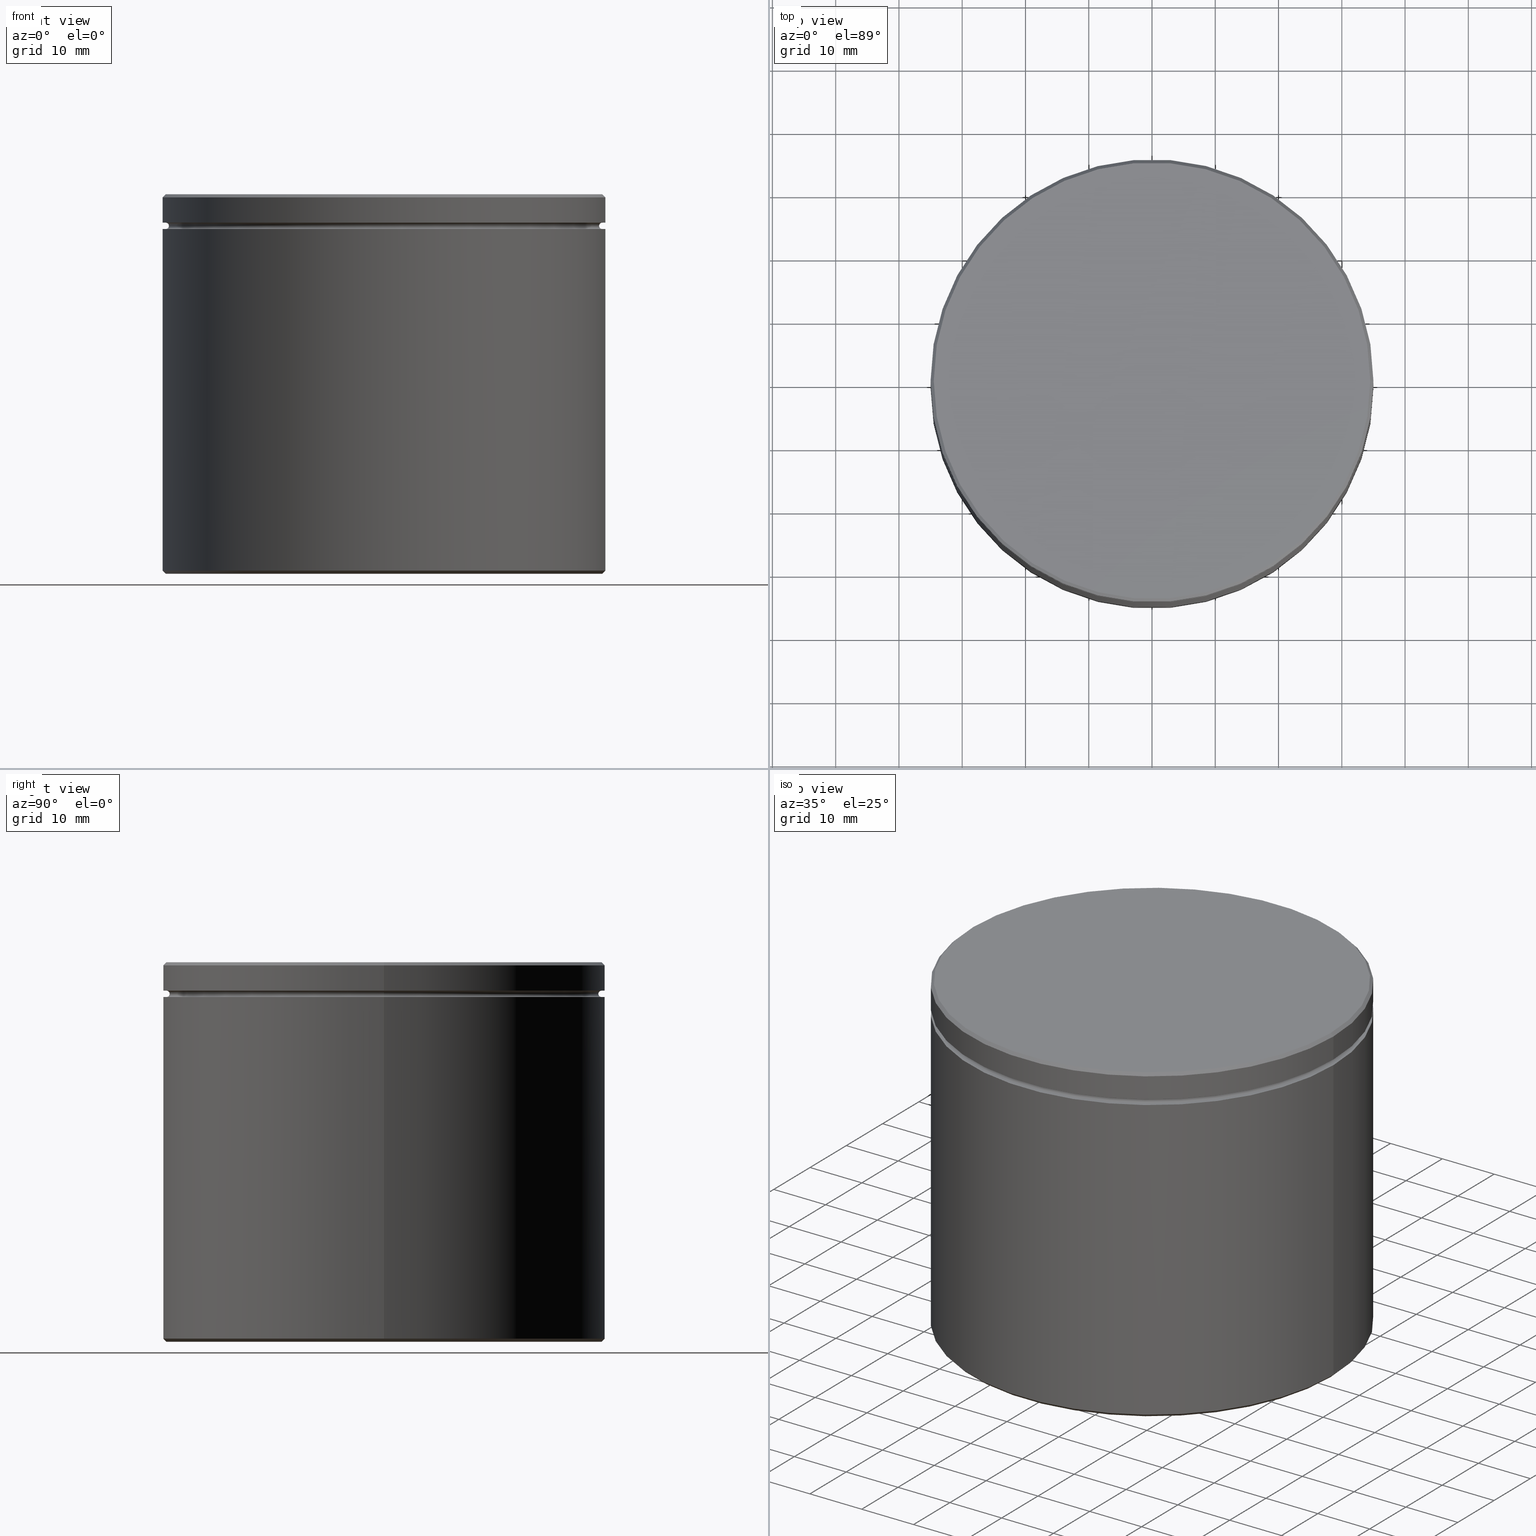
[diagram: canonical four-view strip — front | top / right | iso, engineering-drawing reading convention]
A machine part, canonical four-view strip (front | top / right | iso — engineering-drawing reading convention). The complete STEP part file that produces these views, byte-faithful:
ISO-10303-21;
HEADER;
FILE_DESCRIPTION (( 'STEP AP203' ),
    '1' );
FILE_NAME ('12b8.STEP',
    '2024-01-02T17:53:43',
    ( '' ),
    ( '' ),
    'SwSTEP 2.0',
    'SolidWorks 2019',
    '' );
FILE_SCHEMA (( 'CONFIG_CONTROL_DESIGN' ));
ENDSEC;

DATA;
#1 = DIRECTION ( 'NONE',  ( 1.000000000000000000, 0.000000000000000000, 0.000000000000000000 ) ) ;
#2 = CARTESIAN_POINT ( 'NONE',  ( 0.000000000000000000, 0.000000000000000000, -5.000000000000000888 ) ) ;
#3 = EDGE_LOOP ( 'NONE', ( #241, #21, #394, #489 ) ) ;
#4 = APPROVAL_PERSON_ORGANIZATION ( #126, #345, #395 ) ;
#5 = DATE_TIME_ROLE ( 'classification_date' ) ;
#6 = CARTESIAN_POINT ( 'NONE',  ( 0.000000000000000000, 0.000000000000000000, -0.4999999999999727995 ) ) ;
#7 = ORIENTED_EDGE ( 'NONE', *, *, #416, .T. ) ;
#8 = CARTESIAN_POINT ( 'NONE',  ( 0.000000000000000000, 0.000000000000000000, -17.99999999999999645 ) ) ;
#9 = ORIENTED_EDGE ( 'NONE', *, *, #416, .F. ) ;
#10 = AXIS2_PLACEMENT_3D ( 'NONE', #112, #503, #284 ) ;
#11 = CIRCLE ( 'NONE', #399, 34.00000000000000000 ) ;
#12 = PERSON_AND_ORGANIZATION_ROLE ( 'creator' ) ;
#13 = LINE ( 'NONE', #523, #294 ) ;
#14 = ORIENTED_EDGE ( 'NONE', *, *, #460, .F. ) ;
#15 = CARTESIAN_POINT ( 'NONE',  ( 34.50000000000001421, 4.225031457058370500E-15, 0.000000000000000000 ) ) ;
#16 = ORIENTED_EDGE ( 'NONE', *, *, #200, .T. ) ;
#17 = DESIGN_CONTEXT ( 'detailed design', #366, 'design' ) ;
#18 = EDGE_CURVE ( 'NONE', #527, #361, #280, .T. ) ;
#19 = CARTESIAN_POINT ( 'NONE',  ( 0.000000000000000000, 0.000000000000000000, 0.000000000000000000 ) ) ;
#20 = CARTESIAN_POINT ( 'NONE',  ( 0.000000000000000000, 0.000000000000000000, -4.999999999999999112 ) ) ;
#21 = ORIENTED_EDGE ( 'NONE', *, *, #263, .T. ) ;
#22 = ORIENTED_EDGE ( 'NONE', *, *, #521, .T. ) ;
#23 = DIRECTION ( 'NONE',  ( -0.000000000000000000, -0.000000000000000000, 1.000000000000000000 ) ) ;
#24 = ORIENTED_EDGE ( 'NONE', *, *, #381, .F. ) ;
#25 = EDGE_CURVE ( 'NONE', #332, #461, #425, .T. ) ;
#26 = EDGE_LOOP ( 'NONE', ( #543, #192, #106, #316 ) ) ;
#27 = VERTEX_POINT ( 'NONE', #367 ) ;
#28 = AXIS2_PLACEMENT_3D ( 'NONE', #562, #87, #421 ) ;
#29 = CARTESIAN_POINT ( 'NONE',  ( -34.50000000000001421, 0.000000000000000000, 0.000000000000000000 ) ) ;
#30 = FACE_OUTER_BOUND ( 'NONE', #376, .T. ) ;
#31 = DIRECTION ( 'NONE',  ( 0.000000000000000000, 0.000000000000000000, -1.000000000000000000 ) ) ;
#32 = EDGE_CURVE ( 'NONE', #188, #439, #74, .T. ) ;
#33 = DIRECTION ( 'NONE',  ( -0.000000000000000000, -0.000000000000000000, 1.000000000000000000 ) ) ;
#34 = DIRECTION ( 'NONE',  ( 1.000000000000000000, 0.000000000000000000, 0.000000000000000000 ) ) ;
#35 = CARTESIAN_POINT ( 'NONE',  ( 25.50000000000000000, 3.122849337825749828E-15, -17.99999999999999645 ) ) ;
#36 = CC_DESIGN_APPROVAL ( #557, ( #256 ) ) ;
#37 = APPLICATION_PROTOCOL_DEFINITION ( 'international standard', 'config_control_design', 1994, #374 ) ;
#38 = TOROIDAL_SURFACE ( 'NONE', #498, 34.50000000000000000, 0.5000000000000000000 ) ;
#39 = CIRCLE ( 'NONE', #352, 35.00000000000000000 ) ;
#40 = CYLINDRICAL_SURFACE ( 'NONE', #171, 35.00000000000000000 ) ;
#41 = VERTEX_POINT ( 'NONE', #322 ) ;
#42 = EDGE_CURVE ( 'NONE', #328, #118, #558, .T. ) ;
#43 = DIRECTION ( 'NONE',  ( 1.000000000000000000, 0.000000000000000000, 0.000000000000000000 ) ) ;
#44 = DATE_TIME_ROLE ( 'creation_date' ) ;
#45 = DIRECTION ( 'NONE',  ( -0.000000000000000000, -0.000000000000000000, 1.000000000000000000 ) ) ;
#46 = PERSON_AND_ORGANIZATION ( #161, #278 ) ;
#47 = DIRECTION ( 'NONE',  ( 1.224646799147353207E-16, 1.000000000000000000, 0.000000000000000000 ) ) ;
#48 = VECTOR ( 'NONE', #539, 1000.000000000000000 ) ;
#49 = AXIS2_PLACEMENT_3D ( 'NONE', #555, #375, #552 ) ;
#50 = ORIENTED_EDGE ( 'NONE', *, *, #324, .F. ) ;
#51 = CC_DESIGN_PERSON_AND_ORGANIZATION_ASSIGNMENT ( #309, #12, ( #304 ) ) ;
#52 = APPROVAL_DATE_TIME ( #92, #345 ) ;
#53 = CARTESIAN_POINT ( 'NONE',  ( 0.000000000000000000, 35.00000000000000000, -60.00000000000000000 ) ) ;
#54 = CYLINDRICAL_SURFACE ( 'NONE', #456, 35.00000000000000000 ) ;
#55 = VERTEX_POINT ( 'NONE', #546 ) ;
#56 = CARTESIAN_POINT ( 'NONE',  ( -35.00000000000000000, 4.286263797015736496E-15, -0.4999999999999727995 ) ) ;
#57 = DIRECTION ( 'NONE',  ( 1.000000000000000000, 0.000000000000000000, 0.000000000000000000 ) ) ;
#58 = EDGE_LOOP ( 'NONE', ( #496, #568, #268, #62 ) ) ;
#59 = DATE_AND_TIME ( #99, #237 ) ;
#60 = CIRCLE ( 'NONE', #370, 25.50000000000000000 ) ;
#61 = CARTESIAN_POINT ( 'NONE',  ( 0.000000000000000000, 0.000000000000000000, -17.99999999999999645 ) ) ;
#62 = ORIENTED_EDGE ( 'NONE', *, *, #85, .F. ) ;
#63 = CIRCLE ( 'NONE', #464, 34.50000000000000000 ) ;
#64 = ADVANCED_FACE ( 'NONE', ( #30 ), #351, .T. ) ;
#65 = DIRECTION ( 'NONE',  ( -0.7071067811865573427, 0.000000000000000000, -0.7071067811865378028 ) ) ;
#66 = ORIENTED_EDGE ( 'NONE', *, *, #42, .T. ) ;
#67 = DIRECTION ( 'NONE',  ( -1.000000000000000000, 0.000000000000000000, 0.000000000000000000 ) ) ;
#68 = ORIENTED_EDGE ( 'NONE', *, *, #484, .T. ) ;
#69 = VECTOR ( 'NONE', #65, 1000.000000000000000 ) ;
#70 = ADVANCED_FACE ( 'NONE', ( #72 ), #38, .F. ) ;
#71 = AXIS2_PLACEMENT_3D ( 'NONE', #383, #31, #337 ) ;
#72 = FACE_OUTER_BOUND ( 'NONE', #58, .T. ) ;
#73 = EDGE_LOOP ( 'NONE', ( #24, #363, #359, #142 ) ) ;
#74 = LINE ( 'NONE', #491, #408 ) ;
#75 = PERSON_AND_ORGANIZATION_ROLE ( 'design_owner' ) ;
#76 = FACE_BOUND ( 'NONE', #452, .T. ) ;
#77 = LOCAL_TIME ( 18, 53, 43.00000000000000000, #139 ) ;
#78 = AXIS2_PLACEMENT_3D ( 'NONE', #104, #487, #446 ) ;
#79 = APPROVAL_STATUS ( 'not_yet_approved' ) ;
#80 = FACE_OUTER_BOUND ( 'NONE', #398, .T. ) ;
#81 = APPROVAL ( #79, 'NEUR�EN�' ) ;
#82 = DIRECTION ( 'NONE',  ( -1.000000000000000000, -1.224646799147349509E-16, 0.000000000000000000 ) ) ;
#83 =( NAMED_UNIT ( * ) SI_UNIT ( $, .STERADIAN. ) SOLID_ANGLE_UNIT ( ) );
#84 = CARTESIAN_POINT ( 'NONE',  ( 34.50000000000001421, 4.255647627037053498E-15, 0.000000000000000000 ) ) ;
#85 = EDGE_CURVE ( 'NONE', #96, #406, #249, .T. ) ;
#86 = PERSON_AND_ORGANIZATION ( #161, #278 ) ;
#87 = DIRECTION ( 'NONE',  ( -0.000000000000000000, -0.000000000000000000, 1.000000000000000000 ) ) ;
#88 = DIRECTION ( 'NONE',  ( 1.000000000000000000, 0.000000000000000000, 0.000000000000000000 ) ) ;
#89 = EDGE_LOOP ( 'NONE', ( #448, #206, #480, #271 ) ) ;
#90 = ADVANCED_FACE ( 'NONE', ( #76, #80 ), #551, .T. ) ;
#91 = DIRECTION ( 'NONE',  ( 1.000000000000000000, 0.000000000000000000, 0.000000000000000000 ) ) ;
#92 = DATE_AND_TIME ( #436, #152 ) ;
#93 = CYLINDRICAL_SURFACE ( 'NONE', #204, 35.00000000000000000 ) ;
#94 = CIRCLE ( 'NONE', #450, 34.00000000000000000 ) ;
#95 = CARTESIAN_POINT ( 'NONE',  ( 35.00000000000000000, 0.000000000000000000, -5.500000000000000000 ) ) ;
#96 = VERTEX_POINT ( 'NONE', #160 ) ;
#97 = PLANE ( 'NONE',  #449 ) ;
#98 = ORIENTED_EDGE ( 'NONE', *, *, #468, .F. ) ;
#99 = CALENDAR_DATE ( 2024, 2, 1 ) ;
#100 = CARTESIAN_POINT ( 'NONE',  ( 0.000000000000000000, 0.000000000000000000, -60.00000000000000000 ) ) ;
#101 = FACE_OUTER_BOUND ( 'NONE', #492, .T. ) ;
#102 = ORIENTED_EDGE ( 'NONE', *, *, #338, .F. ) ;
#103 = EDGE_CURVE ( 'NONE', #458, #55, #156, .T. ) ;
#104 = CARTESIAN_POINT ( 'NONE',  ( -34.50000000000000000, 0.000000000000000000, -5.000000000000000888 ) ) ;
#105 = DIRECTION ( 'NONE',  ( -0.000000000000000000, -0.000000000000000000, 1.000000000000000000 ) ) ;
#106 = ORIENTED_EDGE ( 'NONE', *, *, #545, .T. ) ;
#107 = ORIENTED_EDGE ( 'NONE', *, *, #148, .F. ) ;
#108 = DIRECTION ( 'NONE',  ( 0.000000000000000000, 0.000000000000000000, -1.000000000000000000 ) ) ;
#109 = ADVANCED_FACE ( 'NONE', ( #246 ), #385, .T. ) ;
#110 = DIRECTION ( 'NONE',  ( 0.000000000000000000, 0.000000000000000000, -1.000000000000000000 ) ) ;
#111 = AXIS2_PLACEMENT_3D ( 'NONE', #508, #288, #82 ) ;
#112 = CARTESIAN_POINT ( 'NONE',  ( 34.50000000000000000, 0.000000000000000000, -4.999999999999999112 ) ) ;
#113 = DIRECTION ( 'NONE',  ( -1.000000000000000000, 0.000000000000000000, 0.000000000000000000 ) ) ;
#114 = ORIENTED_EDGE ( 'NONE', *, *, #521, .F. ) ;
#115 = ADVANCED_FACE ( 'NONE', ( #232 ), #54, .T. ) ;
#116 = CARTESIAN_POINT ( 'NONE',  ( 0.000000000000000000, 35.00000000000000000, -4.500000000000000888 ) ) ;
#117 = DIRECTION ( 'NONE',  ( -1.000000000000000000, 0.000000000000000000, 0.000000000000000000 ) ) ;
#118 = VERTEX_POINT ( 'NONE', #220 ) ;
#119 = CLOSED_SHELL ( 'NONE', ( #510, #70, #64, #109, #225, #474, #283, #423, #143, #115, #530, #90, #377, #360, #186, #317, #364, #274, #129 ) ) ;
#120 = CIRCLE ( 'NONE', #244, 34.50000000000002132 ) ;
#121 = DIRECTION ( 'NONE',  ( -0.000000000000000000, -0.000000000000000000, 1.000000000000000000 ) ) ;
#122 = EDGE_CURVE ( 'NONE', #118, #328, #153, .T. ) ;
#123 = DIRECTION ( 'NONE',  ( 1.000000000000000000, 0.000000000000000000, 0.000000000000000000 ) ) ;
#124 = DIRECTION ( 'NONE',  ( -0.000000000000000000, -0.000000000000000000, 1.000000000000000000 ) ) ;
#125 = CIRCLE ( 'NONE', #203, 35.00000000000000000 ) ;
#126 = PERSON_AND_ORGANIZATION ( #161, #278 ) ;
#127 = AXIS2_PLACEMENT_3D ( 'NONE', #329, #289, #159 ) ;
#128 = DIRECTION ( 'NONE',  ( -0.000000000000000000, -0.000000000000000000, -1.000000000000000000 ) ) ;
#129 = ADVANCED_FACE ( 'NONE', ( #349 ), #293, .F. ) ;
#130 = LINE ( 'NONE', #190, #195 ) ;
#131 = FACE_OUTER_BOUND ( 'NONE', #260, .T. ) ;
#132 = DIRECTION ( 'NONE',  ( 0.000000000000000000, 0.000000000000000000, -1.000000000000000000 ) ) ;
#133 = DIRECTION ( 'NONE',  ( -1.000000000000000000, 0.000000000000000000, 0.000000000000000000 ) ) ;
#134 = ORIENTED_EDGE ( 'NONE', *, *, #564, .F. ) ;
#135 = DIRECTION ( 'NONE',  ( 1.000000000000000000, 0.000000000000000000, 0.000000000000000000 ) ) ;
#136 = CIRCLE ( 'NONE', #342, 34.50000000000000000 ) ;
#137 = DIRECTION ( 'NONE',  ( 1.000000000000000000, 0.000000000000000000, 0.000000000000000000 ) ) ;
#138 = ORIENTED_EDGE ( 'NONE', *, *, #502, .F. ) ;
#139 = COORDINATED_UNIVERSAL_TIME_OFFSET ( 1, 0, .AHEAD. ) ;
#140 = DIRECTION ( 'NONE',  ( -1.000000000000000000, 0.000000000000000000, -0.000000000000000000 ) ) ;
#141 = LINE ( 'NONE', #313, #258 ) ;
#142 = ORIENTED_EDGE ( 'NONE', *, *, #158, .F. ) ;
#143 = ADVANCED_FACE ( 'NONE', ( #131 ), #526, .T. ) ;
#144 = DIRECTION ( 'NONE',  ( 0.000000000000000000, 0.000000000000000000, -1.000000000000000000 ) ) ;
#145 = VERTEX_POINT ( 'NONE', #95 ) ;
#146 = AXIS2_PLACEMENT_3D ( 'NONE', #285, #462, #133 ) ;
#147 = EDGE_LOOP ( 'NONE', ( #314, #66 ) ) ;
#148 = EDGE_CURVE ( 'NONE', #506, #265, #60, .T. ) ;
#149 = LINE ( 'NONE', #554, #544 ) ;
#150 = FACE_OUTER_BOUND ( 'NONE', #538, .T. ) ;
#151 = ORIENTED_EDGE ( 'NONE', *, *, #209, .F. ) ;
#152 = LOCAL_TIME ( 18, 53, 43.00000000000000000, #517 ) ;
#153 = CIRCLE ( 'NONE', #559, 34.50000000000000000 ) ;
#154 = AXIS2_PLACEMENT_3D ( 'NONE', #418, #373, #34 ) ;
#155 = TOROIDAL_SURFACE ( 'NONE', #471, 34.50000000000000000, 0.5000000000000000000 ) ;
#156 = CIRCLE ( 'NONE', #472, 35.00000000000000000 ) ;
#157 = DIRECTION ( 'NONE',  ( 1.000000000000000000, 0.000000000000000000, 0.000000000000000000 ) ) ;
#158 = EDGE_CURVE ( 'NONE', #527, #439, #451, .T. ) ;
#159 = DIRECTION ( 'NONE',  ( 1.000000000000000000, 0.000000000000000000, 0.000000000000000000 ) ) ;
#160 = CARTESIAN_POINT ( 'NONE',  ( 34.00000000000000000, 0.000000000000000000, -4.999999999999999112 ) ) ;
#161 = PERSON ( 'NEUR�EN�', 'NEUR�EN�', 'NEUR�EN�', ('NEUR�EN�'), ('NEUR�EN�'), ('NEUR�EN�') ) ;
#162 = DIRECTION ( 'NONE',  ( -1.000000000000000000, 0.000000000000000000, -0.000000000000000000 ) ) ;
#163 = FACE_OUTER_BOUND ( 'NONE', #532, .T. ) ;
#164 = CIRCLE ( 'NONE', #218, 0.5000000000000004441 ) ;
#165 = EDGE_CURVE ( 'NONE', #406, #357, #136, .T. ) ;
#166 = CARTESIAN_POINT ( 'NONE',  ( 0.000000000000000000, 0.000000000000000000, -17.99999999999999645 ) ) ;
#167 = APPLICATION_PROTOCOL_DEFINITION ( 'international standard', 'config_control_design', 1994, #366 ) ;
#168 = DIRECTION ( 'NONE',  ( 1.000000000000000000, 0.000000000000000000, 0.000000000000000000 ) ) ;
#169 = ORIENTED_EDGE ( 'NONE', *, *, #253, .F. ) ;
#170 = APPROVAL_ROLE ( '' ) ;
#171 = AXIS2_PLACEMENT_3D ( 'NONE', #211, #124, #292 ) ;
#172 = DIRECTION ( 'NONE',  ( 0.000000000000000000, 0.000000000000000000, -1.000000000000000000 ) ) ;
#173 = PRODUCT_DEFINITION ( 'NEZN�M�', '', #304, #17 ) ;
#174 = DATE_AND_TIME ( #566, #556 ) ;
#175 = DIRECTION ( 'NONE',  ( -1.000000000000000000, 1.224646799147349509E-16, 0.000000000000000000 ) ) ;
#176 = PRODUCT ( '12b8', '12b8', '', ( #504 ) ) ;
#177 = DIRECTION ( 'NONE',  ( -0.000000000000000000, -0.000000000000000000, 1.000000000000000000 ) ) ;
#178 = ORIENTED_EDGE ( 'NONE', *, *, #569, .F. ) ;
#179 = DIRECTION ( 'NONE',  ( -1.000000000000000000, 0.000000000000000000, 0.000000000000000000 ) ) ;
#180 = ORIENTED_EDGE ( 'NONE', *, *, #247, .F. ) ;
#181 = LOCAL_TIME ( 18, 53, 43.00000000000000000, #417 ) ;
#182 = APPROVAL_DATE_TIME ( #174, #557 ) ;
#183 = DIRECTION ( 'NONE',  ( -0.000000000000000000, -0.000000000000000000, 1.000000000000000000 ) ) ;
#184 = AXIS2_PLACEMENT_3D ( 'NONE', #323, #497, #279 ) ;
#185 = CIRCLE ( 'NONE', #250, 34.50000000000002132 ) ;
#186 = ADVANCED_FACE ( 'NONE', ( #433 ), #97, .T. ) ;
#187 = DIRECTION ( 'NONE',  ( -1.000000000000000000, 0.000000000000000000, 0.000000000000000000 ) ) ;
#188 = VERTEX_POINT ( 'NONE', #264 ) ;
#189 = PERSON_AND_ORGANIZATION ( #161, #278 ) ;
#190 = CARTESIAN_POINT ( 'NONE',  ( -35.00000000000000000, 4.286263797015736496E-15, 0.000000000000000000 ) ) ;
#191 = CARTESIAN_POINT ( 'NONE',  ( 0.000000000000000000, 0.000000000000000000, -5.500000000000000000 ) ) ;
#192 = ORIENTED_EDGE ( 'NONE', *, *, #32, .T. ) ;
#193 = EDGE_LOOP ( 'NONE', ( #307, #350 ) ) ;
#194 = CC_DESIGN_DATE_AND_TIME_ASSIGNMENT ( #59, #44, ( #173 ) ) ;
#195 = VECTOR ( 'NONE', #45, 1000.000000000000000 ) ;
#196 = DIRECTION ( 'NONE',  ( -0.000000000000000000, -0.000000000000000000, 1.000000000000000000 ) ) ;
#197 = ADVANCED_BREP_SHAPE_REPRESENTATION ( '12b8', ( #467, #340 ), #560 ) ;
#198 = VERTEX_POINT ( 'NONE', #476 ) ;
#199 = CARTESIAN_POINT ( 'NONE',  ( 0.000000000000000000, 0.000000000000000000, -4.999999999999999112 ) ) ;
#200 = EDGE_CURVE ( 'NONE', #41, #145, #125, .T. ) ;
#201 = FACE_OUTER_BOUND ( 'NONE', #221, .T. ) ;
#202 = ORIENTED_EDGE ( 'NONE', *, *, #103, .T. ) ;
#203 = AXIS2_PLACEMENT_3D ( 'NONE', #191, #306, #91 ) ;
#204 = AXIS2_PLACEMENT_3D ( 'NONE', #227, #353, #215 ) ;
#205 = CARTESIAN_POINT ( 'NONE',  ( 0.000000000000000000, 0.000000000000000000, -59.50000000000001421 ) ) ;
#206 = ORIENTED_EDGE ( 'NONE', *, *, #209, .T. ) ;
#207 = CALENDAR_DATE ( 2024, 2, 1 ) ;
#208 = DIRECTION ( 'NONE',  ( -1.000000000000000000, 0.000000000000000000, 0.000000000000000000 ) ) ;
#209 = EDGE_CURVE ( 'NONE', #188, #27, #519, .T. ) ;
#210 =( LENGTH_UNIT ( ) NAMED_UNIT ( * ) SI_UNIT ( .MILLI., .METRE. ) );
#211 = CARTESIAN_POINT ( 'NONE',  ( 0.000000000000000000, 0.000000000000000000, 0.000000000000000000 ) ) ;
#212 = DIRECTION ( 'NONE',  ( 0.000000000000000000, 0.000000000000000000, -1.000000000000000000 ) ) ;
#213 = FACE_OUTER_BOUND ( 'NONE', #233, .T. ) ;
#214 = PERSON_AND_ORGANIZATION_ROLE ( 'classification_officer' ) ;
#215 = DIRECTION ( 'NONE',  ( 1.000000000000000000, 0.000000000000000000, 0.000000000000000000 ) ) ;
#216 = CC_DESIGN_PERSON_AND_ORGANIZATION_ASSIGNMENT ( #86, #75, ( #176 ) ) ;
#217 = APPROVAL_STATUS ( 'not_yet_approved' ) ;
#218 = AXIS2_PLACEMENT_3D ( 'NONE', #389, #47, #175 ) ;
#219 = CARTESIAN_POINT ( 'NONE',  ( 0.000000000000000000, 0.000000000000000000, -5.500000000000000000 ) ) ;
#220 = CARTESIAN_POINT ( 'NONE',  ( -34.50000000000000000, 0.000000000000000000, -4.500000000000000888 ) ) ;
#221 = EDGE_LOOP ( 'NONE', ( #454, #275, #372, #368 ) ) ;
#222 = PERSON_AND_ORGANIZATION ( #161, #278 ) ;
#223 = DIRECTION ( 'NONE',  ( -1.000000000000000000, 0.000000000000000000, 0.000000000000000000 ) ) ;
#224 = ORIENTED_EDGE ( 'NONE', *, *, #18, .F. ) ;
#225 = ADVANCED_FACE ( 'NONE', ( #101 ), #441, .F. ) ;
#226 = APPROVAL_STATUS ( 'not_yet_approved' ) ;
#227 = CARTESIAN_POINT ( 'NONE',  ( 0.000000000000000000, 0.000000000000000000, 0.000000000000000000 ) ) ;
#228 = DIRECTION ( 'NONE',  ( 0.000000000000000000, 0.000000000000000000, -1.000000000000000000 ) ) ;
#229 = EDGE_LOOP ( 'NONE', ( #7, #542 ) ) ;
#230 = AXIS2_PLACEMENT_3D ( 'NONE', #2, #397, #223 ) ;
#231 = DIRECTION ( 'NONE',  ( 1.000000000000000000, 0.000000000000000000, 0.000000000000000000 ) ) ;
#232 = FACE_OUTER_BOUND ( 'NONE', #89, .T. ) ;
#233 = EDGE_LOOP ( 'NONE', ( #169, #224, #432, #298 ) ) ;
#234 = CARTESIAN_POINT ( 'NONE',  ( 0.000000000000000000, 0.000000000000000000, -4.500000000000000888 ) ) ;
#235 = ORIENTED_EDGE ( 'NONE', *, *, #18, .T. ) ;
#236 = ORIENTED_EDGE ( 'NONE', *, *, #553, .T. ) ;
#237 = LOCAL_TIME ( 18, 53, 43.00000000000000000, #388 ) ;
#238 = ORIENTED_EDGE ( 'NONE', *, *, #453, .F. ) ;
#239 = CIRCLE ( 'NONE', #387, 35.00000000000000000 ) ;
#240 = EDGE_CURVE ( 'NONE', #27, #486, #257, .T. ) ;
#241 = ORIENTED_EDGE ( 'NONE', *, *, #553, .F. ) ;
#242 = ORIENTED_EDGE ( 'NONE', *, *, #401, .F. ) ;
#243 = VERTEX_POINT ( 'NONE', #537 ) ;
#244 = AXIS2_PLACEMENT_3D ( 'NONE', #100, #132, #431 ) ;
#245 = APPROVAL_ROLE ( '' ) ;
#246 = FACE_OUTER_BOUND ( 'NONE', #73, .T. ) ;
#247 = EDGE_CURVE ( 'NONE', #312, #55, #141, .T. ) ;
#248 = FACE_OUTER_BOUND ( 'NONE', #459, .T. ) ;
#249 = CIRCLE ( 'NONE', #10, 0.5000000000000004441 ) ;
#250 = AXIS2_PLACEMENT_3D ( 'NONE', #303, #440, #475 ) ;
#251 = FACE_OUTER_BOUND ( 'NONE', #273, .T. ) ;
#252 = DIRECTION ( 'NONE',  ( -0.000000000000000000, -0.000000000000000000, 1.000000000000000000 ) ) ;
#253 = EDGE_CURVE ( 'NONE', #361, #486, #390, .T. ) ;
#254 = DATE_AND_TIME ( #392, #77 ) ;
#255 = ORIENTED_EDGE ( 'NONE', *, *, #468, .T. ) ;
#256 = SECURITY_CLASSIFICATION ( '', '', #296 ) ;
#257 = LINE ( 'NONE', #354, #48 ) ;
#258 = VECTOR ( 'NONE', #447, 1000.000000000000000 ) ;
#259 = VECTOR ( 'NONE', #267, 1000.000000000000000 ) ;
#260 = EDGE_LOOP ( 'NONE', ( #235, #348 ) ) ;
#261 = DIRECTION ( 'NONE',  ( -1.000000000000000000, 0.000000000000000000, -0.000000000000000000 ) ) ;
#262 = ORIENTED_EDGE ( 'NONE', *, *, #165, .T. ) ;
#263 = EDGE_CURVE ( 'NONE', #96, #198, #11, .T. ) ;
#264 = CARTESIAN_POINT ( 'NONE',  ( -35.00000000000000000, 4.286263797015736496E-15, -4.500000000000000888 ) ) ;
#265 = VERTEX_POINT ( 'NONE', #413 ) ;
#266 = PLANE ( 'NONE',  #565 ) ;
#267 = DIRECTION ( 'NONE',  ( 0.7071067811865573427, 8.659560562355053653E-17, -0.7071067811865378028 ) ) ;
#268 = ORIENTED_EDGE ( 'NONE', *, *, #165, .F. ) ;
#269 = AXIS2_PLACEMENT_3D ( 'NONE', #358, #315, #438 ) ;
#270 = CIRCLE ( 'NONE', #511, 25.50000000000000000 ) ;
#271 = ORIENTED_EDGE ( 'NONE', *, *, #444, .T. ) ;
#272 = CARTESIAN_POINT ( 'NONE',  ( 0.000000000000000000, 0.000000000000000000, 0.000000000000000000 ) ) ;
#273 = EDGE_LOOP ( 'NONE', ( #238, #151 ) ) ;
#274 = ADVANCED_FACE ( 'NONE', ( #201 ), #310, .F. ) ;
#275 = ORIENTED_EDGE ( 'NONE', *, *, #263, .F. ) ;
#276 = ORIENTED_EDGE ( 'NONE', *, *, #103, .F. ) ;
#277 = ORIENTED_EDGE ( 'NONE', *, *, #460, .T. ) ;
#278 = ORGANIZATION ( 'NEUR�EN�', 'NEUR�EN�', '' ) ;
#279 = DIRECTION ( 'NONE',  ( 1.000000000000000000, 0.000000000000000000, 0.000000000000000000 ) ) ;
#280 = CIRCLE ( 'NONE', #434, 34.50000000000001421 ) ;
#281 = CONICAL_SURFACE ( 'NONE', #49, 34.50000000000001421, 0.7853981633974621568 ) ;
#282 = AXIS2_PLACEMENT_3D ( 'NONE', #512, #290, #43 ) ;
#283 = ADVANCED_FACE ( 'NONE', ( #325 ), #331, .T. ) ;
#284 = DIRECTION ( 'NONE',  ( 0.000000000000000000, 0.000000000000000000, -1.000000000000000000 ) ) ;
#285 = CARTESIAN_POINT ( 'NONE',  ( 0.000000000000000000, 0.000000000000000000, 0.000000000000000000 ) ) ;
#286 = CC_DESIGN_PERSON_AND_ORGANIZATION_ASSIGNMENT ( #46, #344, ( #173 ) ) ;
#287 = AXIS2_PLACEMENT_3D ( 'NONE', #116, #212, #162 ) ;
#288 = DIRECTION ( 'NONE',  ( -1.224646799147353207E-16, 1.000000000000000000, 0.000000000000000000 ) ) ;
#289 = DIRECTION ( 'NONE',  ( 0.000000000000000000, 0.000000000000000000, -1.000000000000000000 ) ) ;
#290 = DIRECTION ( 'NONE',  ( -0.000000000000000000, -0.000000000000000000, 1.000000000000000000 ) ) ;
#291 = APPROVAL_PERSON_ORGANIZATION ( #528, #557, #170 ) ;
#292 = DIRECTION ( 'NONE',  ( 1.000000000000000000, 0.000000000000000000, 0.000000000000000000 ) ) ;
#293 = TOROIDAL_SURFACE ( 'NONE', #230, 34.50000000000000000, 0.5000000000000000000 ) ;
#294 = VECTOR ( 'NONE', #311, 1000.000000000000000 ) ;
#295 = EDGE_CURVE ( 'NONE', #461, #332, #499, .T. ) ;
#296 = SECURITY_CLASSIFICATION_LEVEL ( 'unclassified' ) ;
#297 = CARTESIAN_POINT ( 'NONE',  ( 34.50000000000002132, 0.000000000000000000, -60.00000000000000000 ) ) ;
#298 = ORIENTED_EDGE ( 'NONE', *, *, #444, .F. ) ;
#299 = SHAPE_DEFINITION_REPRESENTATION ( #514, #197 ) ;
#300 = DIRECTION ( 'NONE',  ( 0.000000000000000000, 0.000000000000000000, -1.000000000000000000 ) ) ;
#301 = ORIENTED_EDGE ( 'NONE', *, *, #324, .T. ) ;
#302 = DIRECTION ( 'NONE',  ( 1.000000000000000000, 0.000000000000000000, 0.000000000000000000 ) ) ;
#303 = CARTESIAN_POINT ( 'NONE',  ( 0.000000000000000000, 0.000000000000000000, -60.00000000000000000 ) ) ;
#304 = PRODUCT_DEFINITION_FORMATION_WITH_SPECIFIED_SOURCE ( 'LIBOVOLN�', '', #176, .NOT_KNOWN. ) ;
#305 = CC_DESIGN_PERSON_AND_ORGANIZATION_ASSIGNMENT ( #222, #214, ( #256 ) ) ;
#306 = DIRECTION ( 'NONE',  ( -0.000000000000000000, -0.000000000000000000, 1.000000000000000000 ) ) ;
#307 = ORIENTED_EDGE ( 'NONE', *, *, #295, .T. ) ;
#308 = AXIS2_PLACEMENT_3D ( 'NONE', #494, #196, #365 ) ;
#309 = PERSON_AND_ORGANIZATION ( #161, #278 ) ;
#310 = TOROIDAL_SURFACE ( 'NONE', #426, 34.50000000000000000, 0.5000000000000000000 ) ;
#311 = DIRECTION ( 'NONE',  ( -0.7071067811865426878, 8.659560562354874926E-17, 0.7071067811865524577 ) ) ;
#312 = VERTEX_POINT ( 'NONE', #297 ) ;
#313 = CARTESIAN_POINT ( 'NONE',  ( 35.00000000000000000, 0.000000000000000000, -59.50000000000001421 ) ) ;
#314 = ORIENTED_EDGE ( 'NONE', *, *, #122, .T. ) ;
#315 = DIRECTION ( 'NONE',  ( -0.000000000000000000, -0.000000000000000000, 1.000000000000000000 ) ) ;
#316 = ORIENTED_EDGE ( 'NONE', *, *, #240, .F. ) ;
#317 = ADVANCED_FACE ( 'NONE', ( #213 ), #281, .T. ) ;
#318 = CARTESIAN_POINT ( 'NONE',  ( -25.50000000000000000, 0.000000000000000000, -60.00000000000000000 ) ) ;
#319 = AXIS2_PLACEMENT_3D ( 'NONE', #470, #252, #1 ) ;
#320 = CARTESIAN_POINT ( 'NONE',  ( 0.000000000000000000, 0.000000000000000000, -17.99999999999999645 ) ) ;
#321 = ORIENTED_EDGE ( 'NONE', *, *, #247, .T. ) ;
#322 = CARTESIAN_POINT ( 'NONE',  ( -35.00000000000000000, 4.286263797015736496E-15, -5.500000000000000000 ) ) ;
#323 = CARTESIAN_POINT ( 'NONE',  ( 0.000000000000000000, 0.000000000000000000, -59.50000000000001421 ) ) ;
#324 = EDGE_CURVE ( 'NONE', #332, #265, #341, .T. ) ;
#325 = FACE_OUTER_BOUND ( 'NONE', #26, .T. ) ;
#326 = CIRCLE ( 'NONE', #371, 35.00000000000000000 ) ;
#327 = EDGE_LOOP ( 'NONE', ( #107, #178 ) ) ;
#328 = VERTEX_POINT ( 'NONE', #419 ) ;
#329 = CARTESIAN_POINT ( 'NONE',  ( 0.000000000000000000, 0.000000000000000000, -0.4999999999999727995 ) ) ;
#330 = CARTESIAN_POINT ( 'NONE',  ( 0.000000000000000000, 0.000000000000000000, -59.50000000000001421 ) ) ;
#331 = CYLINDRICAL_SURFACE ( 'NONE', #28, 35.00000000000000000 ) ;
#332 = VERTEX_POINT ( 'NONE', #35 ) ;
#333 = DIRECTION ( 'NONE',  ( 1.000000000000000000, 0.000000000000000000, 0.000000000000000000 ) ) ;
#334 = AXIS2_PLACEMENT_3D ( 'NONE', #205, #378, #469 ) ;
#335 = DIRECTION ( 'NONE',  ( -1.000000000000000000, 0.000000000000000000, 0.000000000000000000 ) ) ;
#336 = CARTESIAN_POINT ( 'NONE',  ( 0.000000000000000000, 0.000000000000000000, 0.000000000000000000 ) ) ;
#337 = DIRECTION ( 'NONE',  ( -1.000000000000000000, 0.000000000000000000, 0.000000000000000000 ) ) ;
#338 = EDGE_CURVE ( 'NONE', #461, #506, #518, .T. ) ;
#339 = PERSON_AND_ORGANIZATION ( #161, #278 ) ;
#340 = AXIS2_PLACEMENT_3D ( 'NONE', #336, #515, #123 ) ;
#341 = LINE ( 'NONE', #382, #535 ) ;
#342 = AXIS2_PLACEMENT_3D ( 'NONE', #404, #228, #137 ) ;
#343 = VECTOR ( 'NONE', #516, 1000.000000000000000 ) ;
#344 = PERSON_AND_ORGANIZATION_ROLE ( 'creator' ) ;
#345 = APPROVAL ( #226, 'NEUR�EN�' ) ;
#346 = DIRECTION ( 'NONE',  ( -0.000000000000000000, -0.000000000000000000, 1.000000000000000000 ) ) ;
#347 = DIRECTION ( 'NONE',  ( 1.000000000000000000, 0.000000000000000000, 0.000000000000000000 ) ) ;
#348 = ORIENTED_EDGE ( 'NONE', *, *, #381, .T. ) ;
#349 = FACE_OUTER_BOUND ( 'NONE', #3, .T. ) ;
#350 = ORIENTED_EDGE ( 'NONE', *, *, #25, .T. ) ;
#351 = CONICAL_SURFACE ( 'NONE', #184, 35.00000000000000000, 0.7853981633974415066 ) ;
#352 = AXIS2_PLACEMENT_3D ( 'NONE', #6, #529, #231 ) ;
#353 = DIRECTION ( 'NONE',  ( -0.000000000000000000, -0.000000000000000000, 1.000000000000000000 ) ) ;
#354 = CARTESIAN_POINT ( 'NONE',  ( 35.00000000000000000, 0.000000000000000000, 0.000000000000000000 ) ) ;
#355 = EDGE_LOOP ( 'NONE', ( #50, #442, #501, #500 ) ) ;
#356 = CARTESIAN_POINT ( 'NONE',  ( -35.00000000000000000, 4.286263797015736496E-15, -59.50000000000001421 ) ) ;
#357 = VERTEX_POINT ( 'NONE', #513 ) ;
#358 = CARTESIAN_POINT ( 'NONE',  ( 0.000000000000000000, 0.000000000000000000, -4.500000000000000888 ) ) ;
#359 = ORIENTED_EDGE ( 'NONE', *, *, #545, .F. ) ;
#360 = ADVANCED_FACE ( 'NONE', ( #473 ), #427, .F. ) ;
#361 = VERTEX_POINT ( 'NONE', #84 ) ;
#362 = DIRECTION ( 'NONE',  ( -0.000000000000000000, -0.000000000000000000, 1.000000000000000000 ) ) ;
#363 = ORIENTED_EDGE ( 'NONE', *, *, #253, .T. ) ;
#364 = ADVANCED_FACE ( 'NONE', ( #163 ), #409, .T. ) ;
#365 = DIRECTION ( 'NONE',  ( -1.000000000000000000, 0.000000000000000000, 0.000000000000000000 ) ) ;
#366 = APPLICATION_CONTEXT ( 'configuration controlled 3d designs of mechanical parts and assemblies' ) ;
#367 = CARTESIAN_POINT ( 'NONE',  ( 35.00000000000000000, 0.000000000000000000, -4.500000000000000888 ) ) ;
#368 = ORIENTED_EDGE ( 'NONE', *, *, #484, .F. ) ;
#369 = DIRECTION ( 'NONE',  ( -0.000000000000000000, -0.000000000000000000, 1.000000000000000000 ) ) ;
#370 = AXIS2_PLACEMENT_3D ( 'NONE', #393, #482, #179 ) ;
#371 = AXIS2_PLACEMENT_3D ( 'NONE', #219, #346, #525 ) ;
#372 = ORIENTED_EDGE ( 'NONE', *, *, #85, .T. ) ;
#373 = DIRECTION ( 'NONE',  ( 0.000000000000000000, -0.000000000000000000, 1.000000000000000000 ) ) ;
#374 = APPLICATION_CONTEXT ( 'configuration controlled 3d designs of mechanical parts and assemblies' ) ;
#375 = DIRECTION ( 'NONE',  ( 0.000000000000000000, 0.000000000000000000, -1.000000000000000000 ) ) ;
#376 = EDGE_LOOP ( 'NONE', ( #414, #277, #134, #180 ) ) ;
#377 = ADVANCED_FACE ( 'NONE', ( #248 ), #40, .T. ) ;
#378 = DIRECTION ( 'NONE',  ( -0.000000000000000000, -0.000000000000000000, 1.000000000000000000 ) ) ;
#379 = PLANE ( 'NONE',  #287 ) ;
#380 = CARTESIAN_POINT ( 'NONE',  ( -25.50000000000000000, 0.000000000000000000, -17.99999999999999645 ) ) ;
#381 = EDGE_CURVE ( 'NONE', #361, #527, #549, .T. ) ;
#382 = CARTESIAN_POINT ( 'NONE',  ( 25.50000000000000000, 3.122849337825749828E-15, -17.99999999999999645 ) ) ;
#383 = CARTESIAN_POINT ( 'NONE',  ( 0.000000000000000000, 0.000000000000000000, -17.99999999999999645 ) ) ;
#384 = CARTESIAN_POINT ( 'NONE',  ( 0.000000000000000000, 0.000000000000000000, -5.500000000000000000 ) ) ;
#385 = CONICAL_SURFACE ( 'NONE', #146, 34.50000000000001421, 0.7853981633974621568 ) ;
#386 = EDGE_CURVE ( 'NONE', #243, #312, #120, .T. ) ;
#387 = AXIS2_PLACEMENT_3D ( 'NONE', #428, #183, #135 ) ;
#388 = COORDINATED_UNIVERSAL_TIME_OFFSET ( 1, 0, .AHEAD. ) ;
#389 = CARTESIAN_POINT ( 'NONE',  ( -34.50000000000000000, 4.225031457058368922E-15, -4.999999999999999112 ) ) ;
#390 = LINE ( 'NONE', #15, #259 ) ;
#391 = ORIENTED_EDGE ( 'NONE', *, *, #25, .F. ) ;
#392 = CALENDAR_DATE ( 2024, 2, 1 ) ;
#393 = CARTESIAN_POINT ( 'NONE',  ( 0.000000000000000000, 0.000000000000000000, -60.00000000000000000 ) ) ;
#394 = ORIENTED_EDGE ( 'NONE', *, *, #401, .T. ) ;
#395 = APPROVAL_ROLE ( '' ) ;
#396 = CARTESIAN_POINT ( 'NONE',  ( 34.50000000000000000, 0.000000000000000000, -5.500000000000000000 ) ) ;
#397 = DIRECTION ( 'NONE',  ( 0.000000000000000000, 0.000000000000000000, -1.000000000000000000 ) ) ;
#398 = EDGE_LOOP ( 'NONE', ( #411, #16 ) ) ;
#399 = AXIS2_PLACEMENT_3D ( 'NONE', #567, #177, #347 ) ;
#400 = CARTESIAN_POINT ( 'NONE',  ( -25.50000000000000000, 0.000000000000000000, -17.99999999999999645 ) ) ;
#401 = EDGE_CURVE ( 'NONE', #198, #118, #534, .T. ) ;
#402 = CARTESIAN_POINT ( 'NONE',  ( 0.000000000000000000, 0.000000000000000000, 0.000000000000000000 ) ) ;
#403 = ORIENTED_EDGE ( 'NONE', *, *, #122, .F. ) ;
#404 = CARTESIAN_POINT ( 'NONE',  ( 0.000000000000000000, 0.000000000000000000, -5.500000000000000000 ) ) ;
#405 = ORIENTED_EDGE ( 'NONE', *, *, #548, .T. ) ;
#406 = VERTEX_POINT ( 'NONE', #396 ) ;
#407 = CC_DESIGN_PERSON_AND_ORGANIZATION_ASSIGNMENT ( #189, #445, ( #304 ) ) ;
#408 = VECTOR ( 'NONE', #362, 1000.000000000000000 ) ;
#409 = CONICAL_SURFACE ( 'NONE', #282, 35.00000000000000000, 0.7853981633974415066 ) ;
#410 = DIRECTION ( 'NONE',  ( -0.000000000000000000, -0.000000000000000000, 1.000000000000000000 ) ) ;
#411 = ORIENTED_EDGE ( 'NONE', *, *, #502, .T. ) ;
#412 = ORIENTED_EDGE ( 'NONE', *, *, #569, .T. ) ;
#413 = CARTESIAN_POINT ( 'NONE',  ( 25.50000000000000000, 3.122849337825749828E-15, -60.00000000000000000 ) ) ;
#414 = ORIENTED_EDGE ( 'NONE', *, *, #386, .F. ) ;
#415 = AXIS2_PLACEMENT_3D ( 'NONE', #166, #128, #208 ) ;
#416 = EDGE_CURVE ( 'NONE', #312, #243, #185, .T. ) ;
#417 = COORDINATED_UNIVERSAL_TIME_OFFSET ( 1, 0, .AHEAD. ) ;
#418 = CARTESIAN_POINT ( 'NONE',  ( 0.000000000000000000, 34.00000000000000000, -5.500000000000000000 ) ) ;
#419 = CARTESIAN_POINT ( 'NONE',  ( 34.50000000000000000, 4.225031457058368922E-15, -4.500000000000000888 ) ) ;
#420 =( NAMED_UNIT ( * ) PLANE_ANGLE_UNIT ( ) SI_UNIT ( $, .RADIAN. ) );
#421 = DIRECTION ( 'NONE',  ( 1.000000000000000000, 0.000000000000000000, 0.000000000000000000 ) ) ;
#422 = CC_DESIGN_SECURITY_CLASSIFICATION ( #256, ( #304 ) ) ;
#423 = ADVANCED_FACE ( 'NONE', ( #437, #478 ), #266, .T. ) ;
#424 = DIRECTION ( 'NONE',  ( 0.000000000000000000, 0.000000000000000000, -1.000000000000000000 ) ) ;
#425 = CIRCLE ( 'NONE', #533, 25.50000000000000000 ) ;
#426 = AXIS2_PLACEMENT_3D ( 'NONE', #20, #23, #168 ) ;
#427 = CYLINDRICAL_SURFACE ( 'NONE', #415, 25.50000000000000000 ) ;
#428 = CARTESIAN_POINT ( 'NONE',  ( 0.000000000000000000, 0.000000000000000000, -4.500000000000000888 ) ) ;
#429 = DATE_AND_TIME ( #207, #181 ) ;
#430 = CC_DESIGN_APPROVAL ( #81, ( #173 ) ) ;
#431 = DIRECTION ( 'NONE',  ( -1.000000000000000000, 0.000000000000000000, 0.000000000000000000 ) ) ;
#432 = ORIENTED_EDGE ( 'NONE', *, *, #158, .T. ) ;
#433 = FACE_OUTER_BOUND ( 'NONE', #193, .T. ) ;
#434 = AXIS2_PLACEMENT_3D ( 'NONE', #19, #410, #547 ) ;
#435 = CIRCLE ( 'NONE', #111, 0.5000000000000004441 ) ;
#436 = CALENDAR_DATE ( 2024, 2, 1 ) ;
#437 = FACE_OUTER_BOUND ( 'NONE', #229, .T. ) ;
#438 = DIRECTION ( 'NONE',  ( 1.000000000000000000, 0.000000000000000000, 0.000000000000000000 ) ) ;
#439 = VERTEX_POINT ( 'NONE', #56 ) ;
#440 = DIRECTION ( 'NONE',  ( 0.000000000000000000, 0.000000000000000000, -1.000000000000000000 ) ) ;
#441 = CYLINDRICAL_SURFACE ( 'NONE', #509, 25.50000000000000000 ) ;
#442 = ORIENTED_EDGE ( 'NONE', *, *, #295, .F. ) ;
#443 = UNCERTAINTY_MEASURE_WITH_UNIT (LENGTH_MEASURE( 1.000000000000000082E-05 ), #210, 'distance_accuracy_value', 'NONE');
#444 = EDGE_CURVE ( 'NONE', #486, #439, #39, .T. ) ;
#445 = PERSON_AND_ORGANIZATION_ROLE ( 'design_supplier' ) ;
#446 = DIRECTION ( 'NONE',  ( 0.000000000000000000, 0.000000000000000000, -1.000000000000000000 ) ) ;
#447 = DIRECTION ( 'NONE',  ( 0.7071067811865426878, 0.000000000000000000, 0.7071067811865524577 ) ) ;
#448 = ORIENTED_EDGE ( 'NONE', *, *, #32, .F. ) ;
#449 = AXIS2_PLACEMENT_3D ( 'NONE', #61, #144, #261 ) ;
#450 = AXIS2_PLACEMENT_3D ( 'NONE', #466, #33, #333 ) ;
#451 = LINE ( 'NONE', #531, #69 ) ;
#452 = EDGE_LOOP ( 'NONE', ( #262, #68 ) ) ;
#453 = EDGE_CURVE ( 'NONE', #27, #188, #239, .T. ) ;
#454 = ORIENTED_EDGE ( 'NONE', *, *, #490, .F. ) ;
#455 = PRODUCT_RELATED_PRODUCT_CATEGORY ( 'detail', '', ( #176 ) ) ;
#456 = AXIS2_PLACEMENT_3D ( 'NONE', #272, #105, #57 ) ;
#457 = CIRCLE ( 'NONE', #127, 35.00000000000000000 ) ;
#458 = VERTEX_POINT ( 'NONE', #356 ) ;
#459 = EDGE_LOOP ( 'NONE', ( #98, #202, #22, #550 ) ) ;
#460 = EDGE_CURVE ( 'NONE', #243, #458, #13, .T. ) ;
#461 = VERTEX_POINT ( 'NONE', #400 ) ;
#462 = DIRECTION ( 'NONE',  ( 0.000000000000000000, 0.000000000000000000, -1.000000000000000000 ) ) ;
#463 = AXIS2_PLACEMENT_3D ( 'NONE', #402, #485, #302 ) ;
#464 = AXIS2_PLACEMENT_3D ( 'NONE', #384, #300, #88 ) ;
#465 = DIRECTION ( 'NONE',  ( -0.000000000000000000, -0.000000000000000000, -1.000000000000000000 ) ) ;
#466 = CARTESIAN_POINT ( 'NONE',  ( 0.000000000000000000, 0.000000000000000000, -4.999999999999999112 ) ) ;
#467 = MANIFOLD_SOLID_BREP ( 'Zaoblit1', #119 ) ;
#468 = EDGE_CURVE ( 'NONE', #458, #41, #130, .T. ) ;
#469 = DIRECTION ( 'NONE',  ( -1.000000000000000000, 0.000000000000000000, 0.000000000000000000 ) ) ;
#470 = CARTESIAN_POINT ( 'NONE',  ( 0.000000000000000000, 0.000000000000000000, 0.000000000000000000 ) ) ;
#471 = AXIS2_PLACEMENT_3D ( 'NONE', #493, #108, #67 ) ;
#472 = AXIS2_PLACEMENT_3D ( 'NONE', #330, #505, #117 ) ;
#473 = FACE_OUTER_BOUND ( 'NONE', #355, .T. ) ;
#474 = ADVANCED_FACE ( 'NONE', ( #481 ), #93, .T. ) ;
#475 = DIRECTION ( 'NONE',  ( -1.000000000000000000, 0.000000000000000000, 0.000000000000000000 ) ) ;
#476 = CARTESIAN_POINT ( 'NONE',  ( -34.00000000000000000, 4.194415287079684346E-15, -4.999999999999999112 ) ) ;
#477 = APPROVAL_DATE_TIME ( #429, #81 ) ;
#478 = FACE_BOUND ( 'NONE', #327, .T. ) ;
#479 = DIRECTION ( 'NONE',  ( -1.000000000000000000, 0.000000000000000000, 0.000000000000000000 ) ) ;
#480 = ORIENTED_EDGE ( 'NONE', *, *, #240, .T. ) ;
#481 = FACE_OUTER_BOUND ( 'NONE', #540, .T. ) ;
#482 = DIRECTION ( 'NONE',  ( 0.000000000000000000, 0.000000000000000000, -1.000000000000000000 ) ) ;
#483 = ORIENTED_EDGE ( 'NONE', *, *, #564, .T. ) ;
#484 = EDGE_CURVE ( 'NONE', #357, #406, #63, .T. ) ;
#485 = DIRECTION ( 'NONE',  ( 0.000000000000000000, -0.000000000000000000, 1.000000000000000000 ) ) ;
#486 = VERTEX_POINT ( 'NONE', #536 ) ;
#487 = DIRECTION ( 'NONE',  ( -0.000000000000000000, -1.000000000000000000, -0.000000000000000000 ) ) ;
#488 = DIRECTION ( 'NONE',  ( -0.000000000000000000, -0.000000000000000000, -1.000000000000000000 ) ) ;
#489 = ORIENTED_EDGE ( 'NONE', *, *, #42, .F. ) ;
#490 = EDGE_CURVE ( 'NONE', #198, #357, #164, .T. ) ;
#491 = CARTESIAN_POINT ( 'NONE',  ( -35.00000000000000000, 4.286263797015736496E-15, 0.000000000000000000 ) ) ;
#492 = EDGE_LOOP ( 'NONE', ( #391, #301, #412, #102 ) ) ;
#493 = CARTESIAN_POINT ( 'NONE',  ( 0.000000000000000000, 0.000000000000000000, -5.000000000000000888 ) ) ;
#494 = CARTESIAN_POINT ( 'NONE',  ( 0.000000000000000000, 0.000000000000000000, -4.500000000000000888 ) ) ;
#495 = CC_DESIGN_DATE_AND_TIME_ASSIGNMENT ( #254, #5, ( #256 ) ) ;
#496 = ORIENTED_EDGE ( 'NONE', *, *, #548, .F. ) ;
#497 = DIRECTION ( 'NONE',  ( -0.000000000000000000, -0.000000000000000000, 1.000000000000000000 ) ) ;
#498 = AXIS2_PLACEMENT_3D ( 'NONE', #199, #369, #157 ) ;
#499 = CIRCLE ( 'NONE', #71, 25.50000000000000000 ) ;
#500 = ORIENTED_EDGE ( 'NONE', *, *, #148, .T. ) ;
#501 = ORIENTED_EDGE ( 'NONE', *, *, #338, .T. ) ;
#502 = EDGE_CURVE ( 'NONE', #145, #41, #326, .T. ) ;
#503 = DIRECTION ( 'NONE',  ( 0.000000000000000000, -1.000000000000000000, 0.000000000000000000 ) ) ;
#504 = MECHANICAL_CONTEXT ( 'NONE', #374, 'mechanical' ) ;
#505 = DIRECTION ( 'NONE',  ( -0.000000000000000000, -0.000000000000000000, 1.000000000000000000 ) ) ;
#506 = VERTEX_POINT ( 'NONE', #318 ) ;
#507 = APPROVAL_PERSON_ORGANIZATION ( #339, #81, #245 ) ;
#508 = CARTESIAN_POINT ( 'NONE',  ( 34.50000000000000000, 4.225031457058368922E-15, -5.000000000000000888 ) ) ;
#509 = AXIS2_PLACEMENT_3D ( 'NONE', #8, #488, #187 ) ;
#510 = ADVANCED_FACE ( 'NONE', ( #150 ), #155, .F. ) ;
#511 = AXIS2_PLACEMENT_3D ( 'NONE', #563, #424, #335 ) ;
#512 = CARTESIAN_POINT ( 'NONE',  ( 0.000000000000000000, 0.000000000000000000, -59.50000000000001421 ) ) ;
#513 = CARTESIAN_POINT ( 'NONE',  ( -34.50000000000000000, 4.225031457058368922E-15, -5.500000000000000000 ) ) ;
#514 = PRODUCT_DEFINITION_SHAPE ( 'NONE', 'NONE',  #173 ) ;
#515 = DIRECTION ( 'NONE',  ( 0.000000000000000000, 0.000000000000000000, 1.000000000000000000 ) ) ;
#516 = DIRECTION ( 'NONE',  ( -0.000000000000000000, -0.000000000000000000, -1.000000000000000000 ) ) ;
#517 = COORDINATED_UNIVERSAL_TIME_OFFSET ( 1, 0, .AHEAD. ) ;
#518 = LINE ( 'NONE', #380, #343 ) ;
#519 = CIRCLE ( 'NONE', #269, 35.00000000000000000 ) ;
#520 = CIRCLE ( 'NONE', #334, 35.00000000000000000 ) ;
#521 = EDGE_CURVE ( 'NONE', #55, #145, #149, .T. ) ;
#522 = COORDINATED_UNIVERSAL_TIME_OFFSET ( 1, 0, .AHEAD. ) ;
#523 = CARTESIAN_POINT ( 'NONE',  ( -35.00000000000000000, 4.286263797015736496E-15, -59.50000000000001421 ) ) ;
#524 = DIRECTION ( 'NONE',  ( -0.000000000000000000, -0.000000000000000000, 1.000000000000000000 ) ) ;
#525 = DIRECTION ( 'NONE',  ( 1.000000000000000000, 0.000000000000000000, 0.000000000000000000 ) ) ;
#526 = PLANE ( 'NONE',  #463 ) ;
#527 = VERTEX_POINT ( 'NONE', #29 ) ;
#528 = PERSON_AND_ORGANIZATION ( #161, #278 ) ;
#529 = DIRECTION ( 'NONE',  ( 0.000000000000000000, 0.000000000000000000, -1.000000000000000000 ) ) ;
#530 = ADVANCED_FACE ( 'NONE', ( #561, #251 ), #379, .T. ) ;
#531 = CARTESIAN_POINT ( 'NONE',  ( -34.50000000000001421, 0.000000000000000000, 0.000000000000000000 ) ) ;
#532 = EDGE_LOOP ( 'NONE', ( #14, #9, #321, #276 ) ) ;
#533 = AXIS2_PLACEMENT_3D ( 'NONE', #320, #110, #113 ) ;
#534 = CIRCLE ( 'NONE', #78, 0.5000000000000004441 ) ;
#535 = VECTOR ( 'NONE', #465, 1000.000000000000000 ) ;
#536 = CARTESIAN_POINT ( 'NONE',  ( 35.00000000000000000, 0.000000000000000000, -0.4999999999999727995 ) ) ;
#537 = CARTESIAN_POINT ( 'NONE',  ( -34.50000000000002132, 4.255647627037053498E-15, -60.00000000000000000 ) ) ;
#538 = EDGE_LOOP ( 'NONE', ( #405, #236, #403, #242 ) ) ;
#539 = DIRECTION ( 'NONE',  ( -0.000000000000000000, -0.000000000000000000, 1.000000000000000000 ) ) ;
#540 = EDGE_LOOP ( 'NONE', ( #483, #255, #138, #114 ) ) ;
#541 = CC_DESIGN_APPROVAL ( #345, ( #304 ) ) ;
#542 = ORIENTED_EDGE ( 'NONE', *, *, #386, .T. ) ;
#543 = ORIENTED_EDGE ( 'NONE', *, *, #453, .T. ) ;
#544 = VECTOR ( 'NONE', #121, 1000.000000000000000 ) ;
#545 = EDGE_CURVE ( 'NONE', #439, #486, #457, .T. ) ;
#546 = CARTESIAN_POINT ( 'NONE',  ( 35.00000000000000000, 0.000000000000000000, -59.50000000000001421 ) ) ;
#547 = DIRECTION ( 'NONE',  ( 1.000000000000000000, 0.000000000000000000, 0.000000000000000000 ) ) ;
#548 = EDGE_CURVE ( 'NONE', #198, #96, #94, .T. ) ;
#549 = CIRCLE ( 'NONE', #319, 34.50000000000001421 ) ;
#550 = ORIENTED_EDGE ( 'NONE', *, *, #200, .F. ) ;
#551 = PLANE ( 'NONE',  #154 ) ;
#552 = DIRECTION ( 'NONE',  ( -1.000000000000000000, 0.000000000000000000, 0.000000000000000000 ) ) ;
#553 = EDGE_CURVE ( 'NONE', #96, #328, #435, .T. ) ;
#554 = CARTESIAN_POINT ( 'NONE',  ( 35.00000000000000000, 0.000000000000000000, 0.000000000000000000 ) ) ;
#555 = CARTESIAN_POINT ( 'NONE',  ( 0.000000000000000000, 0.000000000000000000, 0.000000000000000000 ) ) ;
#556 = LOCAL_TIME ( 18, 53, 43.00000000000000000, #522 ) ;
#557 = APPROVAL ( #217, 'NEUR�EN�' ) ;
#558 = CIRCLE ( 'NONE', #308, 34.50000000000000000 ) ;
#559 = AXIS2_PLACEMENT_3D ( 'NONE', #234, #524, #479 ) ;
#560 =( GEOMETRIC_REPRESENTATION_CONTEXT ( 3 ) GLOBAL_UNCERTAINTY_ASSIGNED_CONTEXT ( ( #443 ) ) GLOBAL_UNIT_ASSIGNED_CONTEXT ( ( #210, #420, #83 ) ) REPRESENTATION_CONTEXT ( 'NONE', 'WORKASPACE' ) );
#561 = FACE_BOUND ( 'NONE', #147, .T. ) ;
#562 = CARTESIAN_POINT ( 'NONE',  ( 0.000000000000000000, 0.000000000000000000, 0.000000000000000000 ) ) ;
#563 = CARTESIAN_POINT ( 'NONE',  ( 0.000000000000000000, 0.000000000000000000, -60.00000000000000000 ) ) ;
#564 = EDGE_CURVE ( 'NONE', #55, #458, #520, .T. ) ;
#565 = AXIS2_PLACEMENT_3D ( 'NONE', #53, #172, #140 ) ;
#566 = CALENDAR_DATE ( 2024, 2, 1 ) ;
#567 = CARTESIAN_POINT ( 'NONE',  ( 0.000000000000000000, 0.000000000000000000, -4.999999999999999112 ) ) ;
#568 = ORIENTED_EDGE ( 'NONE', *, *, #490, .T. ) ;
#569 = EDGE_CURVE ( 'NONE', #265, #506, #270, .T. ) ;
ENDSEC;
END-ISO-10303-21;
